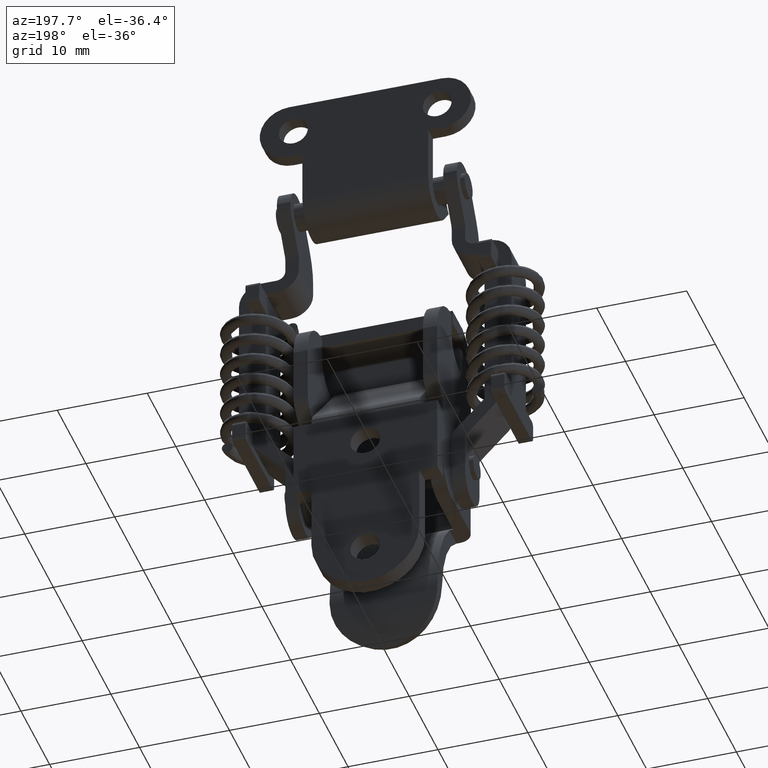
[diagram: clean part render]
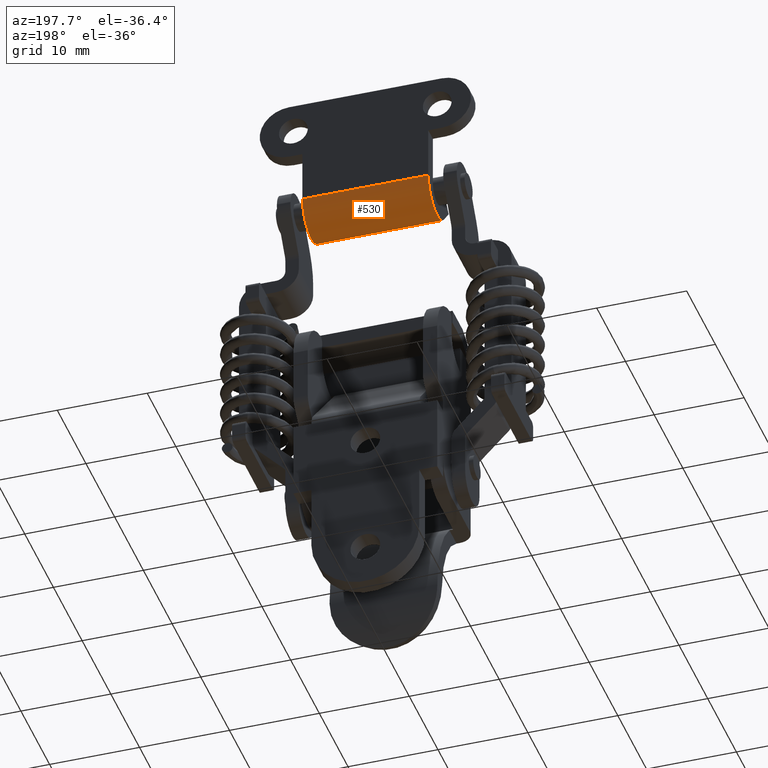
[diagram: same view with one face highlighted and labeled with its STEP entity id]
A machine part, auxiliary view. The second image highlights one B-rep face of the part: STEP entity #530.
In plain terms, the highlighted cylindrical surface (edge-blend (fillet) strip) has radius 3.1 mm, axis along (1, 0, 0).
Its self-contained STEP definition (entity closure, byte-faithful):
#530=ADVANCED_FACE('',(#2888),#2887,.T.);
#2887=CYLINDRICAL_SURFACE('',#6249,3.10000000000E+00);
#2888=FACE_OUTER_BOUND('',#6250,.T.);
#6246=CARTESIAN_POINT('',(9.93000000000E+02,-1.50000000000E+00,-1.24000000000E+01));
#6247=DIRECTION('',(1.00000000000E+00,-0.00000000000E+00,-0.00000000000E+00));
#6248=DIRECTION('',(0.00000000000E+00,-3.50207381259E-01,9.36672189248E-01));
#6249=AXIS2_PLACEMENT_3D('',#6246,#6247,#6248);
#6250=EDGE_LOOP('',(#7509,#7510,#7511,#7512));
#7509=ORIENTED_EDGE('',*,*,#8145,.F.);
#7510=ORIENTED_EDGE('',*,*,#8129,.F.);
#7511=ORIENTED_EDGE('',*,*,#8136,.T.);
#7512=ORIENTED_EDGE('',*,*,#8159,.T.);
#8129=EDGE_CURVE('',#12102,#12068,#12109,.T.);
#8136=EDGE_CURVE('',#12102,#12150,#12157,.T.);
#8145=EDGE_CURVE('',#12068,#12183,#12217,.T.);
#8159=EDGE_CURVE('',#12150,#12183,#12307,.T.);
#12068=VERTEX_POINT('',#15160);
#12102=VERTEX_POINT('',#15181);
#12109=LINE('',#15185,#15186);
#12150=VERTEX_POINT('',#15212);
#12157=CIRCLE('',#15219,3.10000000000E+00);
#12183=VERTEX_POINT('',#15232);
#12217=CIRCLE('',#15255,3.10000000000E+00);
#12307=LINE('',#15307,#15308);
#15160=CARTESIAN_POINT('',(-7.00000000000E+00,1.60000000000E+00,-1.24000000000E+01));
#15181=CARTESIAN_POINT('',(7.00000000000E+00,1.60000000000E+00,-1.24000000000E+01));
#15185=CARTESIAN_POINT('',(7.00000000000E+00,1.60000000000E+00,-1.24000000000E+01));
#15186=VECTOR('',#15187,1.40000000000E+01);
#15187=DIRECTION('',(-1.00000000000E+00,0.00000000000E+00,0.00000000000E+00));
#15212=CARTESIAN_POINT('',(7.00000000000E+00,-3.81256458349E+00,-1.44644720989E+01));
#15216=CARTESIAN_POINT('',(7.00000000000E+00,-1.50000000000E+00,-1.24000000000E+01));
#15217=DIRECTION('',(-1.00000000000E+00,-0.00000000000E+00,0.00000000000E+00));
#15218=DIRECTION('',(0.00000000000E+00,-0.00000000000E+00,1.00000000000E+00));
#15219=AXIS2_PLACEMENT_3D('',#15216,#15217,#15218);
#15232=CARTESIAN_POINT('',(-7.00000000000E+00,-3.81256458349E+00,-1.44644720989E+01));
#15252=CARTESIAN_POINT('',(-7.00000000000E+00,-1.50000000000E+00,-1.24000000000E+01));
#15253=DIRECTION('',(-1.00000000000E+00,-0.00000000000E+00,0.00000000000E+00));
#15254=DIRECTION('',(0.00000000000E+00,-0.00000000000E+00,1.00000000000E+00));
#15255=AXIS2_PLACEMENT_3D('',#15252,#15253,#15254);
#15307=CARTESIAN_POINT('',(7.00000000000E+00,-3.81256458349E+00,-1.44644720989E+01));
#15308=VECTOR('',#15309,1.40000000000E+01);
#15309=DIRECTION('',(-1.00000000000E+00,0.00000000000E+00,0.00000000000E+00));